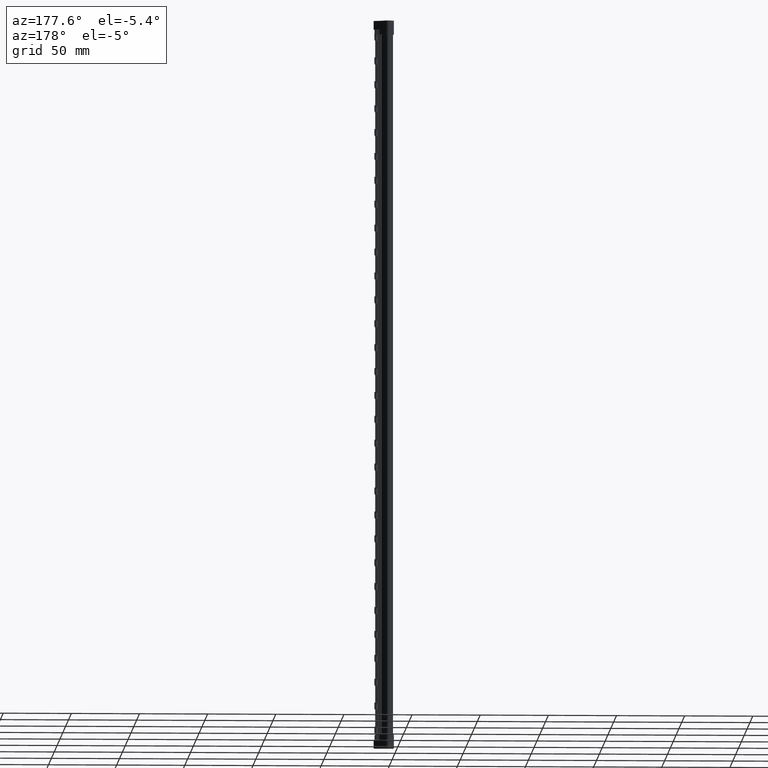
[diagram: clean part render]
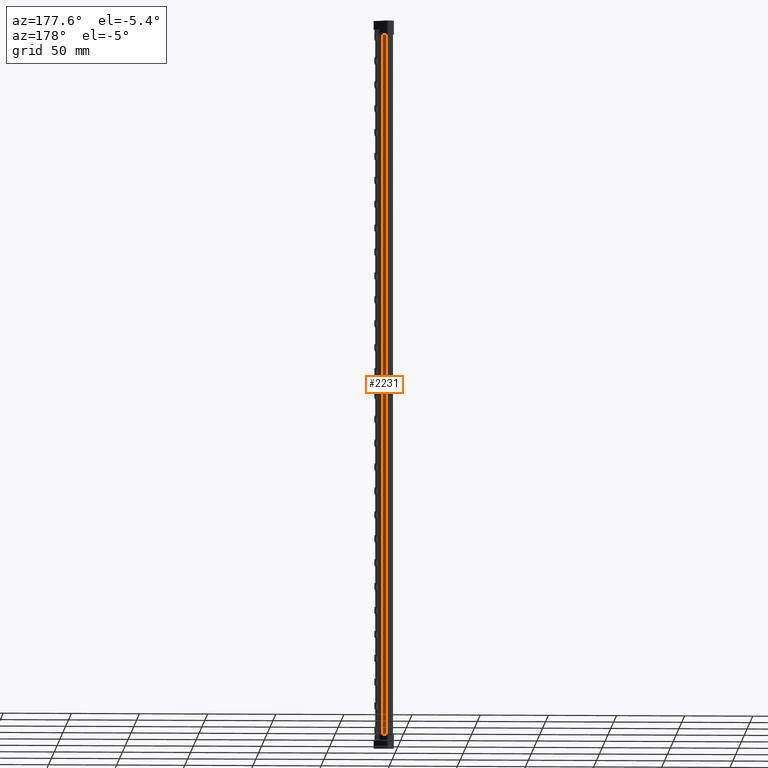
[diagram: same view with one face highlighted and labeled with its STEP entity id]
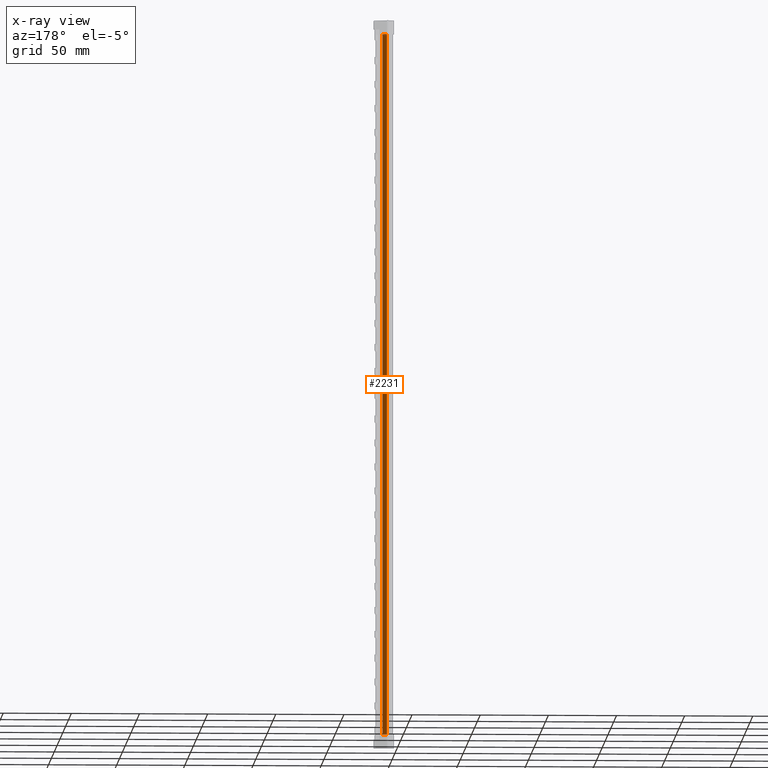
[diagram: x-ray of the same camera — body ghosted, the highlighted face saturated]
A machine part, auxiliary view. The second image highlights one B-rep face of the part: STEP entity #2231.
The next image is the same camera in x-ray: the body ghosted, the highlighted face saturated — about 0% of this face is hidden behind the body in this view.
In plain terms, the highlighted planar face has unit normal (-0.4021, -0.9156, 0).
Its self-contained STEP definition (entity closure, byte-faithful):
#2231 = ADVANCED_FACE ( 'NONE', ( #21469 ), #21446, .F. ) ;
#11737 = AXIS2_PLACEMENT_3D ( 'NONE', #21451, #21456, #21457 ) ;
#21446 = PLANE ( 'NONE',  #11737 ) ;
#21451 = CARTESIAN_POINT ( 'NONE',  ( 7.198977367610304200, 3.653584405884049900, 219.0000000000000000 ) ) ;
#21456 = DIRECTION ( 'NONE',  ( -0.4020837969515297400, -0.9156028725539479000, 9.339969566632776300E-019 ) ) ;
#21457 = DIRECTION ( 'NONE',  ( 0.9156028725539479000, -0.4020837969515297400, -8.730752358650188400E-019 ) ) ;
#21469 = FACE_OUTER_BOUND ( 'NONE', #29580, .T. ) ;
#22387 = EDGE_CURVE ( 'NONE', #28984, #28987, #37072, .T. ) ;
#22412 = EDGE_CURVE ( 'NONE', #34156, #28987, #40183, .T. ) ;
#22480 = EDGE_CURVE ( 'NONE', #28991, #34156, #40503, .T. ) ;
#22549 = EDGE_CURVE ( 'NONE', #28991, #34217, #41346, .T. ) ;
#22558 = EDGE_CURVE ( 'NONE', #34217, #34203, #41511, .T. ) ;
#22596 = EDGE_CURVE ( 'NONE', #34196, #34194, #39337, .T. ) ;
#22634 = EDGE_CURVE ( 'NONE', #34196, #28984, #39846, .T. ) ;
#22635 = EDGE_CURVE ( 'NONE', #34203, #34194, #39795, .T. ) ;
#23424 = ORIENTED_EDGE ( 'NONE', *, *, #22549, .T. ) ;
#23446 = ORIENTED_EDGE ( 'NONE', *, *, #22596, .F. ) ;
#23470 = ORIENTED_EDGE ( 'NONE', *, *, #22387, .T. ) ;
#23503 = ORIENTED_EDGE ( 'NONE', *, *, #22558, .T. ) ;
#23510 = ORIENTED_EDGE ( 'NONE', *, *, #22634, .T. ) ;
#23514 = ORIENTED_EDGE ( 'NONE', *, *, #22480, .F. ) ;
#23521 = ORIENTED_EDGE ( 'NONE', *, *, #22635, .T. ) ;
#23524 = ORIENTED_EDGE ( 'NONE', *, *, #22412, .F. ) ;
#28984 = VERTEX_POINT ( 'NONE', #43407 ) ;
#28987 = VERTEX_POINT ( 'NONE', #43394 ) ;
#28991 = VERTEX_POINT ( 'NONE', #43411 ) ;
#29580 = EDGE_LOOP ( 'NONE', ( #23470, #23524, #23514, #23424, #23503, #23521, #23446, #23510 ) ) ;
#34156 = VERTEX_POINT ( 'NONE', #43489 ) ;
#34194 = VERTEX_POINT ( 'NONE', #43484 ) ;
#34196 = VERTEX_POINT ( 'NONE', #43486 ) ;
#34203 = VERTEX_POINT ( 'NONE', #43498 ) ;
#34217 = VERTEX_POINT ( 'NONE', #43558 ) ;
#37072 = LINE ( 'NONE', #37118, #38697 ) ;
#37118 = CARTESIAN_POINT ( 'NONE',  ( 12.90000028084913100, 1.150000146620298300, 219.0000000000000000 ) ) ;
#37126 = DIRECTION ( 'NONE',  ( 0.9156028725539479000, -0.4020837969515297400, -3.538409553348890900E-026 ) ) ;
#37328 = VECTOR ( 'NONE', #39858, 1000.000000000000000 ) ;
#37349 = VECTOR ( 'NONE', #39784, 1000.000000000000000 ) ;
#38697 = VECTOR ( 'NONE', #37126, 1000.000000000000000 ) ;
#38778 = VECTOR ( 'NONE', #40174, 1000.000000000000000 ) ;
#38815 = VECTOR ( 'NONE', #40514, 1000.000000000000000 ) ;
#38970 = VECTOR ( 'NONE', #41263, 1000.000000000000000 ) ;
#39061 = VECTOR ( 'NONE', #39461, 1000.000000000000000 ) ;
#39145 = VECTOR ( 'NONE', #41520, 1000.000000000000200 ) ;
#39337 = LINE ( 'NONE', #39404, #39061 ) ;
#39404 = CARTESIAN_POINT ( 'NONE',  ( 7.198977367610304200, 3.653584405884049400, -315.0000000000000600 ) ) ;
#39461 = DIRECTION ( 'NONE',  ( 0.9156028725539479000, -0.4020837969515297400, 3.538409553348890900E-026 ) ) ;
#39778 = CARTESIAN_POINT ( 'NONE',  ( 4.023610798727806200, 5.048035521101578400, 219.0000000000000000 ) ) ;
#39784 = DIRECTION ( 'NONE',  ( 1.174935236590071400E-018, 5.041208906165829300E-019, 1.000000000000000000 ) ) ;
#39795 = LINE ( 'NONE', #39865, #37328 ) ;
#39846 = LINE ( 'NONE', #39778, #37349 ) ;
#39858 = DIRECTION ( 'NONE',  ( 3.864550688587075300E-026, -3.939912114750719300E-031, -1.000000000000000000 ) ) ;
#39865 = CARTESIAN_POINT ( 'NONE',  ( 4.041246672134439800, 5.040290789019096000, -309.5000000000001100 ) ) ;
#40174 = DIRECTION ( 'NONE',  ( 3.864550688587075300E-026, -3.939912114750719300E-031, 1.000000000000000000 ) ) ;
#40176 = CARTESIAN_POINT ( 'NONE',  ( 4.041246672134439800, 5.040290789019096000, 213.5000000000000600 ) ) ;
#40183 = LINE ( 'NONE', #40176, #38778 ) ;
#40503 = LINE ( 'NONE', #40505, #38815 ) ;
#40505 = CARTESIAN_POINT ( 'NONE',  ( 2.089768278228537800, 5.897275695697959300, 209.9000000000000100 ) ) ;
#40514 = DIRECTION ( 'NONE',  ( -0.9156028725539479000, 0.4020837969515297400, 3.538409553348890900E-026 ) ) ;
#41263 = DIRECTION ( 'NONE',  ( -1.174935236590071000E-018, -5.041208906165829300E-019, -1.000000000000000000 ) ) ;
#41269 = CARTESIAN_POINT ( 'NONE',  ( 7.198977367610304200, 3.653584405884049900, 219.0000000000000000 ) ) ;
#41346 = LINE ( 'NONE', #41269, #38970 ) ;
#41509 = CARTESIAN_POINT ( 'NONE',  ( 9.056430818341246100, 2.837890223921217400, -305.9000000000000300 ) ) ;
#41511 = LINE ( 'NONE', #41509, #39145 ) ;
#41520 = DIRECTION ( 'NONE',  ( -0.9156028725539471200, 0.4020837969515314000, -3.538409553349299000E-026 ) ) ;
#43394 = CARTESIAN_POINT ( 'NONE',  ( 4.041246672134439800, 5.040290789019096000, 219.0000000000000000 ) ) ;
#43407 = CARTESIAN_POINT ( 'NONE',  ( 4.023610798727804500, 5.048035521101579300, 219.0000000000000000 ) ) ;
#43411 = CARTESIAN_POINT ( 'NONE',  ( 7.198979567648829700, 3.653583439744732400, 209.9000000000000100 ) ) ;
#43484 = CARTESIAN_POINT ( 'NONE',  ( 4.041246672134439800, 5.040290789019096000, -315.0000000000000600 ) ) ;
#43486 = CARTESIAN_POINT ( 'NONE',  ( 4.023610798727805400, 5.048035521101578400, -315.0000000000000600 ) ) ;
#43489 = CARTESIAN_POINT ( 'NONE',  ( 4.041246672134439800, 5.040290789019096000, 209.9000000000000100 ) ) ;
#43498 = CARTESIAN_POINT ( 'NONE',  ( 4.041246672134439800, 5.040290789019096000, -305.9000000000000300 ) ) ;
#43558 = CARTESIAN_POINT ( 'NONE',  ( 7.198979567648829700, 3.653583439744732900, -305.9000000000000300 ) ) ;